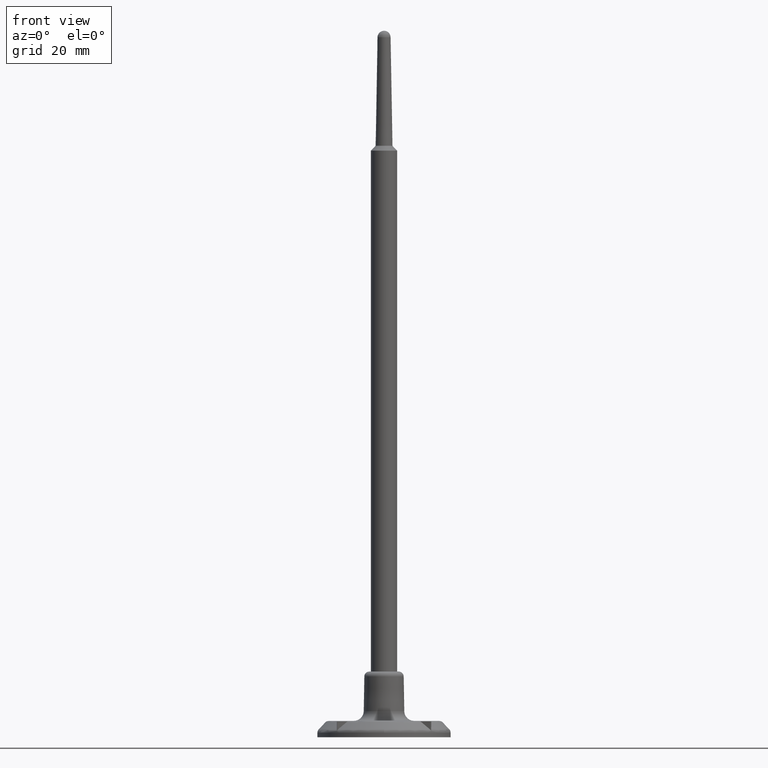
[diagram: clean part render]
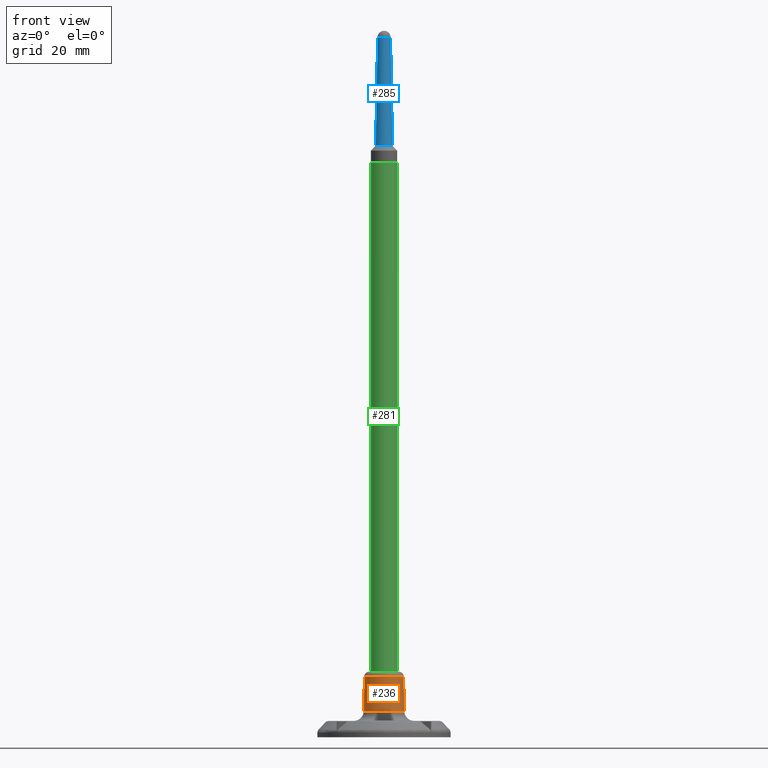
[diagram: same view with three faces highlighted in distinct colors, each labeled with its STEP entity id]
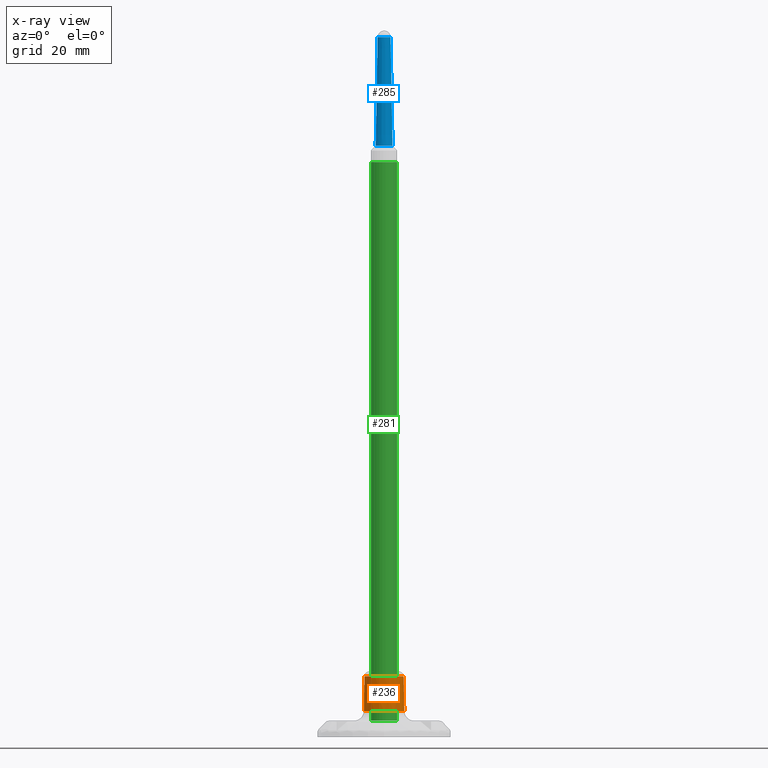
[diagram: x-ray of the same camera — body ghosted, the three highlighted faces saturated]
A machine part, front view with three faces highlighted in distinct colors.
The next image is the same camera in x-ray (body ghosted, the three faces saturated) — at least one of them is partly hidden behind the body in this view.
Their STEP definitions:

[orange] entity #236 — the highlighted conical surface has half-angle 1 deg.
#236 = ADVANCED_FACE( '', ( #439, #440 ), #441, .T. );
#439 = FACE_BOUND( '', #727, .T. );
#440 = FACE_OUTER_BOUND( '', #728, .T. );
#441 = CONICAL_SURFACE( '', #729, 6.00185299999999, 0.0174532925199436 );
#727 = EDGE_LOOP( '', ( #1378 ) );
#728 = EDGE_LOOP( '', ( #1379 ) );
#729 = AXIS2_PLACEMENT_3D( '', #1380, #1381, #1382 );
#1378 = ORIENTED_EDGE( '', *, *, #1968, .T. );
#1379 = ORIENTED_EDGE( '', *, *, #1979, .T. );
#1380 = CARTESIAN_POINT( '', ( -2.24944924219907E-031, 3.67375072843259E-015, 19.9996280000000 ) );
#1381 = DIRECTION( '', ( 1.12474554136660E-032, -1.83690953073357E-016, -1.00000000000000 ) );
#1382 = DIRECTION( '', ( -6.12303176911189E-017, 1.00000000000000, -1.83690953073357E-016 ) );
#1968 = EDGE_CURVE( '', #2380, #2380, #2381, .F. );
#1979 = EDGE_CURVE( '', #2398, #2398, #2399, .F. );
#2380 = VERTEX_POINT( '', #3117 );
#2381 = CIRCLE( '', #3118, 6.02762871017217 );
#2398 = VERTEX_POINT( '', #3142 );
#2399 = CIRCLE( '', #3143, 6.21229115230973 );
#3117 = CARTESIAN_POINT( '', ( 3.69073620847951E-016, -6.02762871017217, 18.5229385532303 ) );
#3118 = AXIS2_PLACEMENT_3D( '', #3540, #3541, #3542 );
#3142 = CARTESIAN_POINT( '', ( -3.80380560845652E-016, 6.21229115230973, 7.94363432852779 ) );
#3143 = AXIS2_PLACEMENT_3D( '', #3562, #3563, #3564 );
#3540 = CARTESIAN_POINT( '', ( -2.08335925507533E-031, 3.40249623656209E-015, 18.5229385532303 ) );
#3541 = DIRECTION( '', ( -1.12474554136660E-032, 1.83690953073357E-016, 1.00000000000000 ) );
#3542 = DIRECTION( '', ( 6.12303176911189E-017, -1.00000000000000, 1.83690953073357E-016 ) );
#3562 = CARTESIAN_POINT( '', ( -8.93456729325832E-032, 1.45917376067350E-015, 7.94363432852779 ) );
#3563 = DIRECTION( '', ( 1.12474554136660E-032, -1.83690953073357E-016, -1.00000000000000 ) );
#3564 = DIRECTION( '', ( -6.12303176911189E-017, 1.00000000000000, -1.83690953073357E-016 ) );

[blue] entity #285 — the highlighted conical surface has half-angle 1 deg.
#285 = ADVANCED_FACE( '', ( #560, #561 ), #562, .T. );
#560 = FACE_OUTER_BOUND( '', #848, .T. );
#561 = FACE_BOUND( '', #849, .T. );
#562 = CONICAL_SURFACE( '', #850, 2.00000000000000, 0.0174532925199433 );
#848 = EDGE_LOOP( '', ( #1736 ) );
#849 = EDGE_LOOP( '', ( #1737 ) );
#850 = AXIS2_PLACEMENT_3D( '', #1738, #1739, #1740 );
#1736 = ORIENTED_EDGE( '', *, *, #2036, .F. );
#1737 = ORIENTED_EDGE( '', *, *, #2037, .T. );
#1738 = CARTESIAN_POINT( '', ( 9.69069932922271E-016, 7.95659563581676E-015, 212.999627999926 ) );
#1739 = DIRECTION( '', ( -2.74943744247425E-017, -1.52926840710354E-017, -1.00000000000000 ) );
#1740 = DIRECTION( '', ( 0.0679078835646008, 0.997691595308779, -1.71244671445015E-017 ) );
#2036 = EDGE_CURVE( '', #2487, #2487, #2488, .T. );
#2037 = EDGE_CURVE( '', #2489, #2489, #2490, .T. );
#2487 = VERTEX_POINT( '', #3277 );
#2488 = CIRCLE( '', #3278, 2.57601714263118 );
#2489 = VERTEX_POINT( '', #3279 );
#2490 = CIRCLE( '', #3280, 2.00000000000000 );
#3277 = CARTESIAN_POINT( '', ( 0.174931872182214, 2.57007065257447, 179.999627999934 ) );
#3278 = AXIS2_PLACEMENT_3D( '', #3641, #3642, #3643 );
#3279 = CARTESIAN_POINT( '', ( 0.135815767129203, 1.99538319061757, 212.999627999926 ) );
#3280 = AXIS2_PLACEMENT_3D( '', #3644, #3645, #3646 );
#3641 = CARTESIAN_POINT( '', ( 6.17555769059913E-017, 7.45193706147272E-015, 179.999627999934 ) );
#3642 = DIRECTION( '', ( -2.74943744247425E-017, -1.52926840710354E-017, -1.00000000000000 ) );
#3643 = DIRECTION( '', ( 0.0679078835646008, 0.997691595308779, -1.71244671445015E-017 ) );
#3644 = CARTESIAN_POINT( '', ( 9.69069932922271E-016, 7.95659563581676E-015, 212.999627999926 ) );
#3645 = DIRECTION( '', ( -2.74943744247425E-017, -1.52926840710354E-017, -1.00000000000000 ) );
#3646 = DIRECTION( '', ( 0.0679078835646008, 0.997691595308779, -1.71244671445015E-017 ) );

[green] entity #281 — the highlighted cylindrical surface (bore or boss wall) has radius 4 mm, axis along (-0, -0, 1).
#281 = ADVANCED_FACE( '', ( #548, #549 ), #550, .T. );
#548 = FACE_OUTER_BOUND( '', #836, .T. );
#549 = FACE_OUTER_BOUND( '', #837, .T. );
#550 = CYLINDRICAL_SURFACE( '', #838, 3.99999999999997 );
#836 = EDGE_LOOP( '', ( #1716 ) );
#837 = EDGE_LOOP( '', ( #1717 ) );
#838 = AXIS2_PLACEMENT_3D( '', #1718, #1719, #1720 );
#1716 = ORIENTED_EDGE( '', *, *, #2031, .F. );
#1717 = ORIENTED_EDGE( '', *, *, #2033, .T. );
#1718 = CARTESIAN_POINT( '', ( 7.70371977754894E-031, 6.42911502455149E-015, 174.999627999939 ) );
#1719 = DIRECTION( '', ( -2.29527408617873E-053, -2.19421187911800E-053, 1.00000000000000 ) );
#1720 = DIRECTION( '', ( 0.562777777724377, -0.826608234231677, -5.22024357439886E-054 ) );
#2031 = EDGE_CURVE( '', #2477, #2477, #2478, .T. );
#2033 = EDGE_CURVE( '', #2481, #2481, #2482, .T. );
#2477 = VERTEX_POINT( '', #3267 );
#2478 = CIRCLE( '', #3268, 3.99999999999997 );
#2481 = VERTEX_POINT( '', #3271 );
#2482 = CIRCLE( '', #3272, 3.99999999999997 );
#3267 = CARTESIAN_POINT( '', ( -2.25111111089749, 3.30643293692669, 174.999627999939 ) );
#3268 = AXIS2_PLACEMENT_3D( '', #3626, #3627, #3628 );
#3271 = CARTESIAN_POINT( '', ( -2.25111111089749, 3.30643293692669, 4.99962800000003 ) );
#3272 = AXIS2_PLACEMENT_3D( '', #3632, #3633, #3634 );
#3626 = CARTESIAN_POINT( '', ( 7.70371977754894E-031, 6.42911502455149E-015, 174.999627999939 ) );
#3627 = DIRECTION( '', ( -2.29527408617873E-053, -2.19421187911800E-053, 1.00000000000000 ) );
#3628 = DIRECTION( '', ( -0.562777777724377, 0.826608234231677, 5.22024357439886E-054 ) );
#3632 = CARTESIAN_POINT( '', ( 7.70371977754894E-031, 6.42911502455149E-015, 4.99962800000003 ) );
#3633 = DIRECTION( '', ( -2.29527408617873E-053, -2.19421187911800E-053, 1.00000000000000 ) );
#3634 = DIRECTION( '', ( -0.562777777724377, 0.826608234231677, 5.22024357439886E-054 ) );